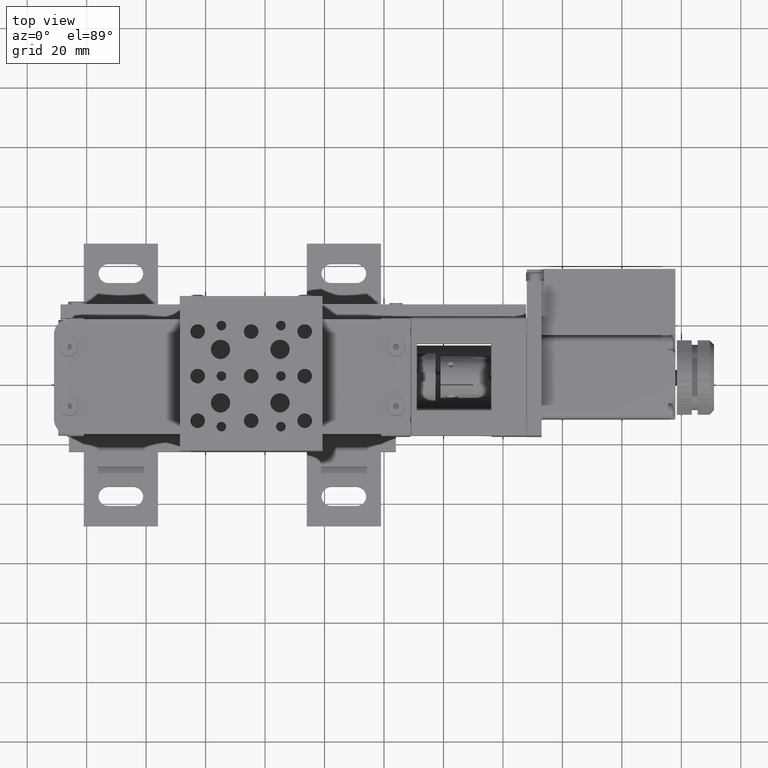
[diagram: clean part render]
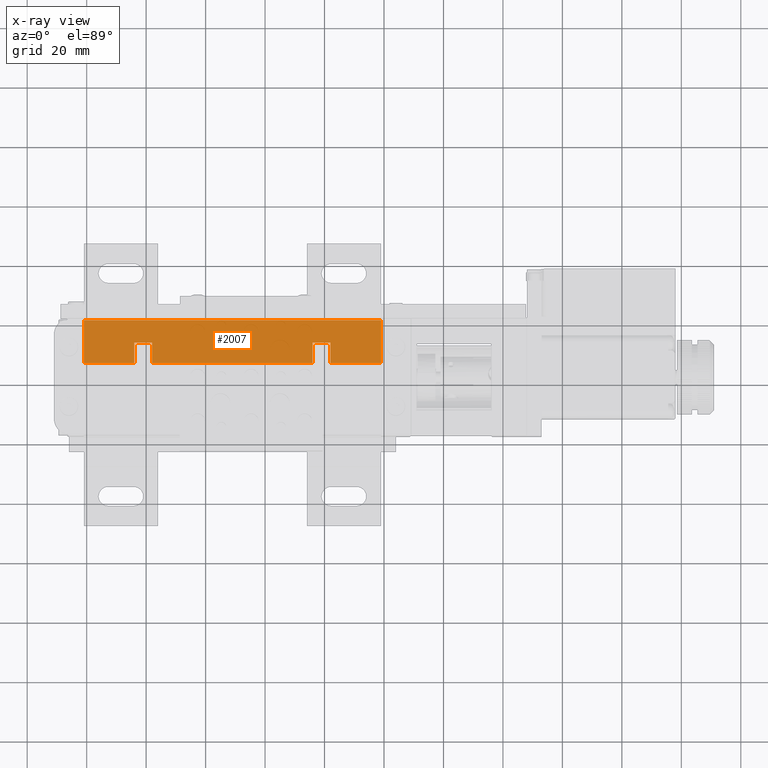
[diagram: x-ray — body ghosted, one internal face saturated and labeled with its STEP entity id]
A machine part, top view, then the same camera in x-ray: the body is ghosted and one INTERNAL B-rep face — a face not visible from any outside direction — is saturated and labeled: STEP entity #2007.
In plain terms, the highlighted planar face has unit normal (0, 0, -1).
Its self-contained STEP definition (entity closure, byte-faithful):
#539=PLANE('',#41092);
#2007=ADVANCED_FACE('',(#4330),#539,.T.);
#4330=FACE_OUTER_BOUND('',#6671,.T.);
#6671=EDGE_LOOP('',(#9529,#9530,#9531,#9532,#9533,#9534,#9535,#9536,#9537,
#9538,#9539,#9540));
#9529=ORIENTED_EDGE('',*,*,#22536,.F.);
#9530=ORIENTED_EDGE('',*,*,#22533,.F.);
#9531=ORIENTED_EDGE('',*,*,#22530,.F.);
#9532=ORIENTED_EDGE('',*,*,#22731,.T.);
#9533=ORIENTED_EDGE('',*,*,#22546,.F.);
#9534=ORIENTED_EDGE('',*,*,#22543,.F.);
#9535=ORIENTED_EDGE('',*,*,#22556,.F.);
#9536=ORIENTED_EDGE('',*,*,#22732,.T.);
#9537=ORIENTED_EDGE('',*,*,#22733,.T.);
#9538=ORIENTED_EDGE('',*,*,#22734,.T.);
#9539=ORIENTED_EDGE('',*,*,#22735,.T.);
#9540=ORIENTED_EDGE('',*,*,#22736,.T.);
#22530=EDGE_CURVE('',#35946,#35956,#29235,.T.);
#22533=EDGE_CURVE('',#35956,#35958,#29238,.T.);
#22536=EDGE_CURVE('',#35958,#35945,#29241,.T.);
#22543=EDGE_CURVE('',#35963,#35964,#29248,.T.);
#22546=EDGE_CURVE('',#35964,#35966,#29251,.T.);
#22556=EDGE_CURVE('',#35972,#35963,#29261,.T.);
#22731=EDGE_CURVE('',#35946,#35966,#29408,.T.);
#22732=EDGE_CURVE('',#35972,#36085,#29409,.T.);
#22733=EDGE_CURVE('',#36085,#36086,#29410,.T.);
#22734=EDGE_CURVE('',#36086,#36087,#29411,.T.);
#22735=EDGE_CURVE('',#36087,#36088,#29412,.T.);
#22736=EDGE_CURVE('',#36088,#35945,#29413,.T.);
#29235=B_SPLINE_CURVE_WITH_KNOTS('',1,(#61705,#61706),.UNSPECIFIED.,.F.,
 .F.,(2,2),(0.,7.0000000000036),.UNSPECIFIED.);
#29238=B_SPLINE_CURVE_WITH_KNOTS('',1,(#61711,#61712),.UNSPECIFIED.,.F.,
 .F.,(2,2),(0.,6.),.UNSPECIFIED.);
#29241=B_SPLINE_CURVE_WITH_KNOTS('',1,(#61717,#61718),.UNSPECIFIED.,.F.,
 .F.,(2,2),(0.,7.000000000004),.UNSPECIFIED.);
#29248=B_SPLINE_CURVE_WITH_KNOTS('',1,(#61731,#61732),.UNSPECIFIED.,.F.,
 .F.,(2,2),(0.,6.),.UNSPECIFIED.);
#29251=B_SPLINE_CURVE_WITH_KNOTS('',1,(#61737,#61738),.UNSPECIFIED.,.F.,
 .F.,(2,2),(0.,6.9999999999995),.UNSPECIFIED.);
#29261=B_SPLINE_CURVE_WITH_KNOTS('',1,(#61757,#61758),.UNSPECIFIED.,.F.,
 .F.,(2,2),(0.,6.9999999999991),.UNSPECIFIED.);
#29408=B_SPLINE_CURVE_WITH_KNOTS('',1,(#62191,#62192),.UNSPECIFIED.,.F.,
 .F.,(2,2),(0.,54.),.UNSPECIFIED.);
#29409=B_SPLINE_CURVE_WITH_KNOTS('',1,(#62193,#62194),.UNSPECIFIED.,.F.,
 .F.,(2,2),(0.,17.0000000000044),.UNSPECIFIED.);
#29410=B_SPLINE_CURVE_WITH_KNOTS('',1,(#62195,#62196),.UNSPECIFIED.,.F.,
 .F.,(2,2),(0.,14.5),.UNSPECIFIED.);
#29411=B_SPLINE_CURVE_WITH_KNOTS('',1,(#62197,#62198),.UNSPECIFIED.,.F.,
 .F.,(2,2),(0.,100.),.UNSPECIFIED.);
#29412=B_SPLINE_CURVE_WITH_KNOTS('',1,(#62199,#62200),.UNSPECIFIED.,.F.,
 .F.,(2,2),(0.,14.5),.UNSPECIFIED.);
#29413=B_SPLINE_CURVE_WITH_KNOTS('',1,(#62201,#62202),.UNSPECIFIED.,.F.,
 .F.,(2,2),(0.,16.9999999999951),.UNSPECIFIED.);
#35945=VERTEX_POINT('',#57262);
#35946=VERTEX_POINT('',#57263);
#35956=VERTEX_POINT('',#57273);
#35958=VERTEX_POINT('',#57275);
#35963=VERTEX_POINT('',#57280);
#35964=VERTEX_POINT('',#57281);
#35966=VERTEX_POINT('',#57283);
#35972=VERTEX_POINT('',#57289);
#36085=VERTEX_POINT('',#57402);
#36086=VERTEX_POINT('',#57403);
#36087=VERTEX_POINT('',#57404);
#36088=VERTEX_POINT('',#57405);
#41092=AXIS2_PLACEMENT_3D('',#45421,#43148,$);
#43148=DIRECTION('',(0.,0.,-1.));
#45421=CARTESIAN_POINT('',(-111.119998857799,5.62999909713877,9.0026215020146));
#57262=CARTESIAN_POINT('',(-17.9999988577926,7.19999909714004,9.00262150201369));
#57263=CARTESIAN_POINT('',(-23.9999988577926,7.19999909714104,9.00262150201359));
#57273=CARTESIAN_POINT('',(-23.9999988577919,14.1999990971446,9.00262150201359));
#57275=CARTESIAN_POINT('',(-17.9999988577919,14.199999097144,9.0026215020137));
#57280=CARTESIAN_POINT('',(-83.9999988577919,14.1999990971503,9.00262150201277));
#57281=CARTESIAN_POINT('',(-77.9999988577919,14.1999990971497,9.00262150201289));
#57283=CARTESIAN_POINT('',(-77.9999988577926,7.19999909715024,9.00262150201288));
#57289=CARTESIAN_POINT('',(-83.9999988577926,7.19999909715124,9.00262150201277));
#57402=CARTESIAN_POINT('',(-100.999998857797,7.19999909715274,9.00262150201396));
#57403=CARTESIAN_POINT('',(-100.999998857796,21.6999990971527,9.00262150201367));
#57404=CARTESIAN_POINT('',(-0.999998857795518,21.6999990971436,9.00262150200719));
#57405=CARTESIAN_POINT('',(-0.999998857797522,7.19999909714364,9.00262150200751));
#61705=CARTESIAN_POINT('',(-23.9999988577926,7.19999909714104,9.00262150201359));
#61706=CARTESIAN_POINT('',(-23.9999988577919,14.1999990971446,9.00262150201359));
#61711=CARTESIAN_POINT('',(-23.9999988577919,14.1999990971446,9.00262150201359));
#61712=CARTESIAN_POINT('',(-17.9999988577919,14.199999097144,9.0026215020137));
#61717=CARTESIAN_POINT('',(-17.9999988577919,14.199999097144,9.0026215020137));
#61718=CARTESIAN_POINT('',(-17.9999988577926,7.19999909714004,9.00262150201369));
#61731=CARTESIAN_POINT('',(-83.9999988577919,14.1999990971503,9.00262150201277));
#61732=CARTESIAN_POINT('',(-77.9999988577919,14.1999990971497,9.00262150201289));
#61737=CARTESIAN_POINT('',(-77.9999988577919,14.1999990971497,9.00262150201289));
#61738=CARTESIAN_POINT('',(-77.9999988577926,7.19999909715024,9.00262150201288));
#61757=CARTESIAN_POINT('',(-83.9999988577926,7.19999909715124,9.00262150201277));
#61758=CARTESIAN_POINT('',(-83.9999988577919,14.1999990971503,9.00262150201277));
#62191=CARTESIAN_POINT('',(-23.9999988577926,7.19999909714104,9.00262150201359));
#62192=CARTESIAN_POINT('',(-77.9999988577926,7.19999909715024,9.00262150201288));
#62193=CARTESIAN_POINT('',(-83.9999988577926,7.19999909715124,9.00262150201277));
#62194=CARTESIAN_POINT('',(-100.999998857797,7.19999909715274,9.00262150201396));
#62195=CARTESIAN_POINT('',(-100.999998857797,7.19999909715274,9.00262150201396));
#62196=CARTESIAN_POINT('',(-100.999998857796,21.6999990971527,9.00262150201367));
#62197=CARTESIAN_POINT('',(-100.999998857796,21.6999990971527,9.00262150201367));
#62198=CARTESIAN_POINT('',(-0.999998857795518,21.6999990971436,9.00262150200719));
#62199=CARTESIAN_POINT('',(-0.999998857795518,21.6999990971436,9.00262150200719));
#62200=CARTESIAN_POINT('',(-0.999998857797522,7.19999909714364,9.00262150200751));
#62201=CARTESIAN_POINT('',(-0.999998857797522,7.19999909714364,9.00262150200751));
#62202=CARTESIAN_POINT('',(-17.9999988577926,7.19999909714004,9.00262150201369));